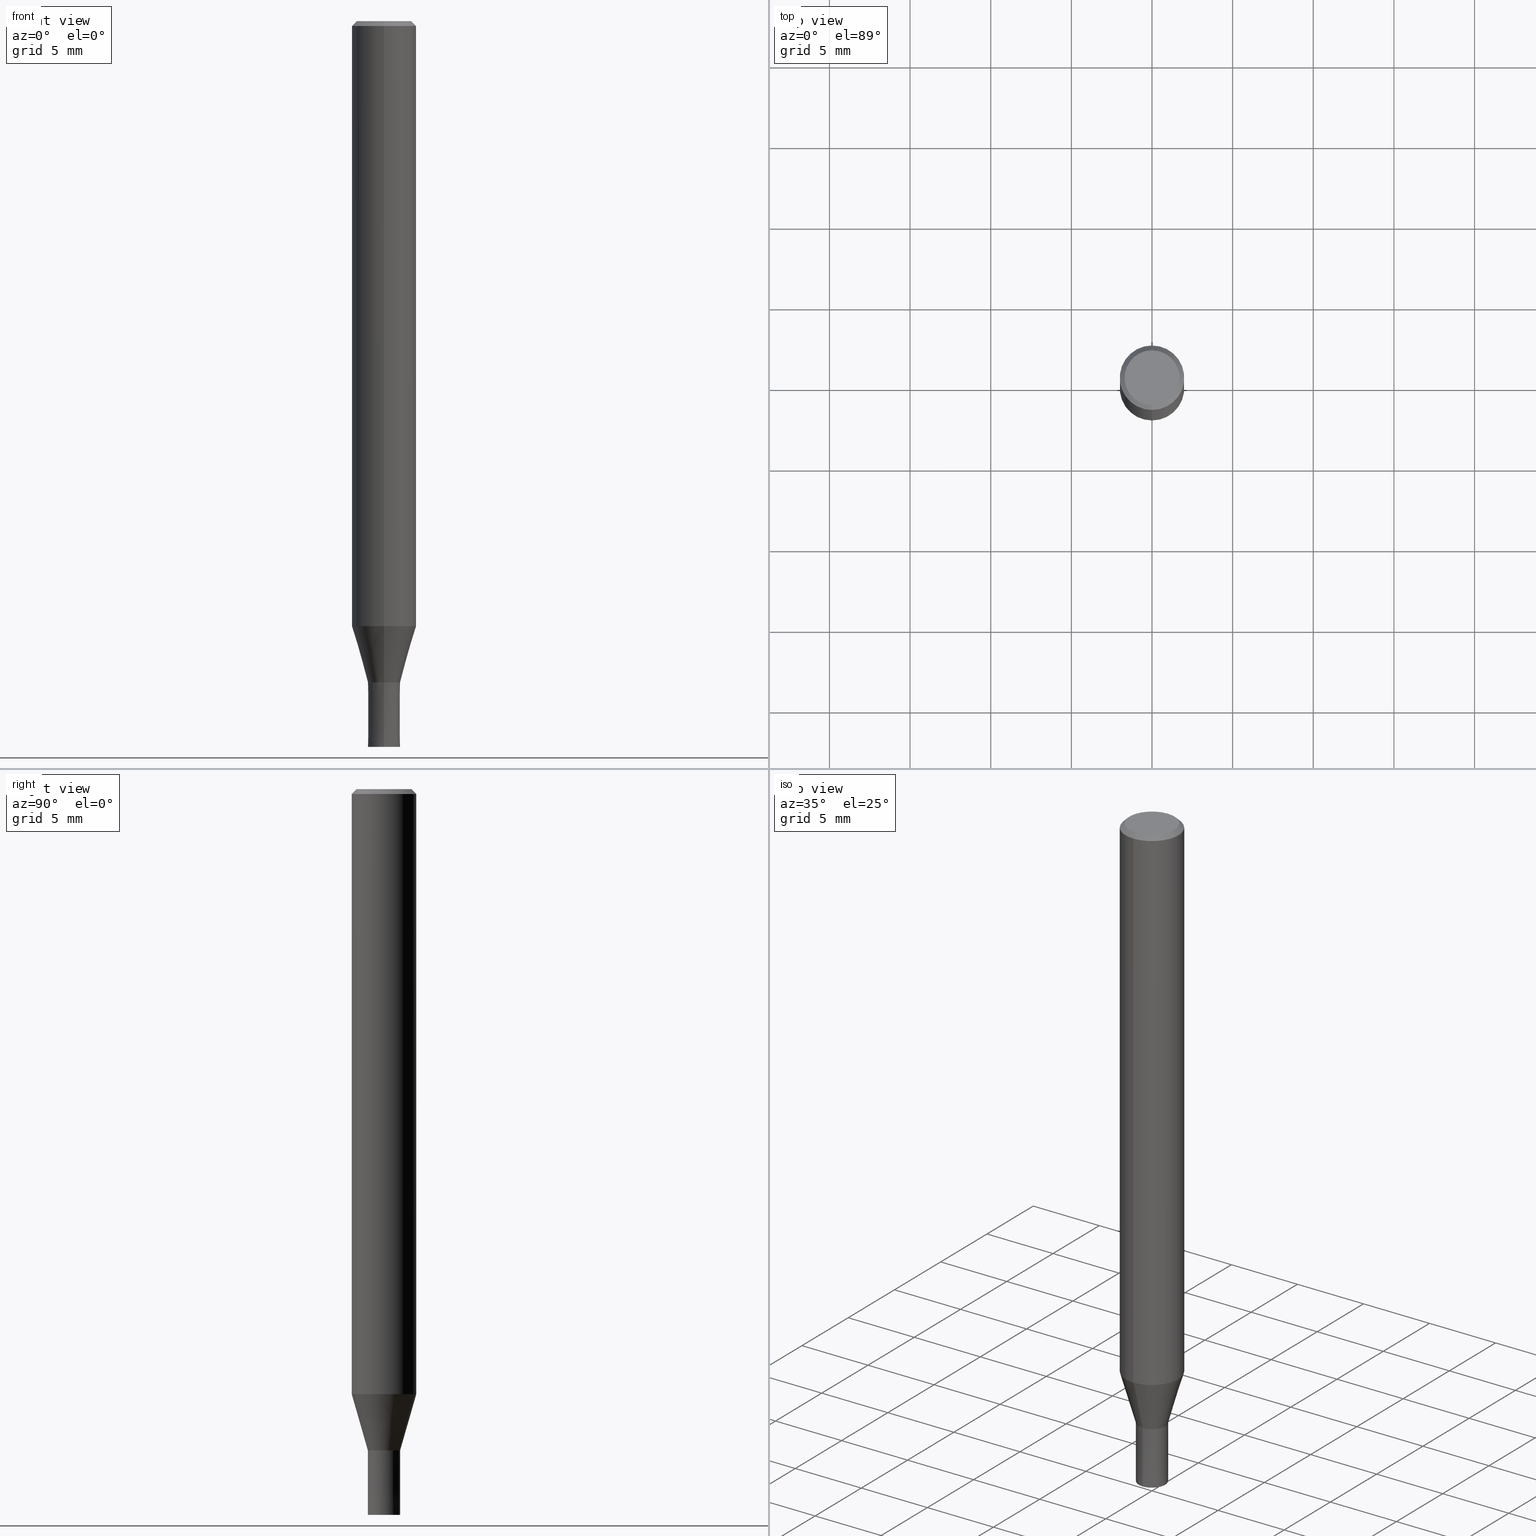
[diagram: canonical four-view strip — front | top / right | iso, engineering-drawing reading convention]
A machine part, canonical four-view strip (front | top / right | iso — engineering-drawing reading convention). The complete STEP part file that produces these views, byte-faithful:
ISO-10303-21;
HEADER;
FILE_DESCRIPTION(('no description'),'unknown implementation level');
FILE_NAME('HMS3020-0400-Huellk.stp','  ',('CIMSOURCE GmbH'),('CADClick - KiM GmbH - www.kimweb.de'),'unknown preprocess','ACIS','unknown authorization');
FILE_SCHEMA(('automotive_design'));
ENDSEC;
DATA;
#1=MECHANICAL_DESIGN_GEOMETRIC_PRESENTATION_REPRESENTATION(' ',(#14,#15,#16,#17,#18,#19,#20,#21,#22,#23,#24,#25,#26,#27,#28,#29,#30,#31,#32,#33,#34,#35,#36,#37,#38,#39,#40,#41,#42,#43,#44,#45,#46,#47,#48,#49,#50,#51,#52,#53,#54,#55,#56,#57,#58,#59,#60,#61,#62,#63,#64,#65,#66,#67,#68,#69,#70,#71,#72,#73,#74,#75,#76,#77,#78,#79,#80,#81,#82,#83,#84,#85,#86,#87,#88,#89),#10);
#2=PRODUCT_DEFINITION_CONTEXT('',#90,'design');
#3=APPLICATION_PROTOCOL_DEFINITION('INTERNATIONAL STANDARD','automotive_design',1994,#90);
#4=PRODUCT_CATEGORY_RELATIONSHIP('NONE','NONE',#91,#92);
#5=SHAPE_DEFINITION_REPRESENTATION(#93,#94);
#6=PRODUCT_DEFINITION_CONTEXT('',#95,'design');
#7=APPLICATION_PROTOCOL_DEFINITION('INTERNATIONAL STANDARD','automotive_design',1994,#95);
#8=PRODUCT_CATEGORY_RELATIONSHIP('NONE','NONE',#96,#97);
#9=SHAPE_DEFINITION_REPRESENTATION(#98,#99);
#10= (GEOMETRIC_REPRESENTATION_CONTEXT(3)GLOBAL_UNCERTAINTY_ASSIGNED_CONTEXT((#102))GLOBAL_UNIT_ASSIGNED_CONTEXT((#104,#105,#106))REPRESENTATION_CONTEXT('NONE','WORKSPACE'));
#14=STYLED_ITEM('',(#108),#109);
#15=STYLED_ITEM('',(#110),#111);
#16=STYLED_ITEM('',(#112),#113);
#17=STYLED_ITEM('',(#114),#115);
#18=STYLED_ITEM('',(#116),#117);
#19=STYLED_ITEM('',(#118),#119);
#20=STYLED_ITEM('',(#120),#121);
#21=STYLED_ITEM('',(#122),#123);
#22=STYLED_ITEM('',(#124),#125);
#23=STYLED_ITEM('',(#126),#127);
#24=STYLED_ITEM('',(#128),#129);
#25=STYLED_ITEM('',(#130),#131);
#26=STYLED_ITEM('',(#132),#133);
#27=STYLED_ITEM('',(#134),#135);
#28=STYLED_ITEM('',(#136),#137);
#29=STYLED_ITEM('',(#138),#139);
#30=STYLED_ITEM('',(#140),#141);
#31=STYLED_ITEM('',(#142),#143);
#32=STYLED_ITEM('',(#144),#145);
#33=STYLED_ITEM('',(#146),#147);
#34=STYLED_ITEM('',(#148),#149);
#35=STYLED_ITEM('',(#150),#151);
#36=STYLED_ITEM('',(#152),#153);
#37=STYLED_ITEM('',(#154),#155);
#38=STYLED_ITEM('',(#156),#157);
#39=STYLED_ITEM('',(#158),#159);
#40=STYLED_ITEM('',(#160),#161);
#41=STYLED_ITEM('',(#162),#163);
#42=STYLED_ITEM('',(#164),#165);
#43=STYLED_ITEM('',(#166),#167);
#44=STYLED_ITEM('',(#168),#169);
#45=STYLED_ITEM('',(#170),#171);
#46=STYLED_ITEM('',(#172),#173);
#47=STYLED_ITEM('',(#174),#175);
#48=STYLED_ITEM('',(#176),#177);
#49=STYLED_ITEM('',(#178),#179);
#50=STYLED_ITEM('',(#180),#181);
#51=STYLED_ITEM('',(#182),#183);
#52=STYLED_ITEM('',(#184),#185);
#53=STYLED_ITEM('',(#186),#187);
#54=STYLED_ITEM('',(#188),#189);
#55=STYLED_ITEM('',(#190),#191);
#56=STYLED_ITEM('',(#192),#193);
#57=STYLED_ITEM('',(#194),#195);
#58=STYLED_ITEM('',(#196),#197);
#59=STYLED_ITEM('',(#198),#199);
#60=STYLED_ITEM('',(#200),#201);
#61=STYLED_ITEM('',(#202),#203);
#62=STYLED_ITEM('',(#204),#205);
#63=STYLED_ITEM('',(#206),#207);
#64=STYLED_ITEM('',(#208),#209);
#65=STYLED_ITEM('',(#210),#211);
#66=STYLED_ITEM('',(#212),#213);
#67=STYLED_ITEM('',(#214),#215);
#68=STYLED_ITEM('',(#216),#217);
#69=STYLED_ITEM('',(#218),#219);
#70=STYLED_ITEM('',(#220),#221);
#71=STYLED_ITEM('',(#222),#223);
#72=STYLED_ITEM('',(#224),#225);
#73=STYLED_ITEM('',(#226),#227);
#74=STYLED_ITEM('',(#228),#229);
#75=STYLED_ITEM('',(#230),#231);
#76=STYLED_ITEM('',(#232),#233);
#77=STYLED_ITEM('',(#234),#235);
#78=STYLED_ITEM('',(#236),#237);
#79=STYLED_ITEM('',(#238),#239);
#80=STYLED_ITEM('',(#240),#241);
#81=STYLED_ITEM('',(#242),#243);
#82=STYLED_ITEM('',(#244),#245);
#83=STYLED_ITEM('',(#246),#247);
#84=STYLED_ITEM('',(#248),#249);
#85=STYLED_ITEM('',(#250),#251);
#86=STYLED_ITEM('',(#252),#253);
#87=STYLED_ITEM('',(#254),#255);
#88=STYLED_ITEM('',(#256),#257);
#89=STYLED_ITEM('',(#258),#259);
#90=APPLICATION_CONTEXT(' ');
#91=PRODUCT_CATEGORY('part','NONE');
#92=PRODUCT_RELATED_PRODUCT_CATEGORY('detail',' ',(#260));
#93=PRODUCT_DEFINITION_SHAPE('NONE','NONE',#261);
#94=ADVANCED_BREP_SHAPE_REPRESENTATION('1',(#209,#262),#10);
#95=APPLICATION_CONTEXT(' ');
#96=PRODUCT_CATEGORY('part','NONE');
#97=PRODUCT_RELATED_PRODUCT_CATEGORY('detail',' ',(#263));
#98=PRODUCT_DEFINITION_SHAPE('NONE','NONE',#264);
#99=ADVANCED_BREP_SHAPE_REPRESENTATION('2',(#237,#265),#10);
#102=UNCERTAINTY_MEASURE_WITH_UNIT(LENGTH_MEASURE(1.0E-006),#104,'','');
#104= (CONVERSION_BASED_UNIT('MILLIMETRE',#268)LENGTH_UNIT()NAMED_UNIT(#271));
#105= (NAMED_UNIT(#273)PLANE_ANGLE_UNIT()SI_UNIT($,.RADIAN.));
#106= (NAMED_UNIT(#273)SOLID_ANGLE_UNIT()SI_UNIT($,.STERADIAN.));
#108=PRESENTATION_STYLE_ASSIGNMENT((#279));
#109=EDGE_CURVE('',#213,#193,#280,.T.);
#110=PRESENTATION_STYLE_ASSIGNMENT((#281));
#111=VERTEX_POINT('',#282);
#112=PRESENTATION_STYLE_ASSIGNMENT((#283));
#113=VERTEX_POINT('',#284);
#114=PRESENTATION_STYLE_ASSIGNMENT((#285));
#115=EDGE_CURVE('',#135,#111,#286,.T.);
#116=PRESENTATION_STYLE_ASSIGNMENT((#287));
#117=EDGE_CURVE('',#213,#257,#288,.T.);
#118=PRESENTATION_STYLE_ASSIGNMENT((#289));
#119=EDGE_CURVE('',#165,#175,#290,.T.);
#120=PRESENTATION_STYLE_ASSIGNMENT((#291));
#121=EDGE_CURVE('',#175,#165,#292,.T.);
#122=PRESENTATION_STYLE_ASSIGNMENT((#293));
#123=ADVANCED_FACE('',(#294),#295,.T.);
#124=PRESENTATION_STYLE_ASSIGNMENT((#296));
#125=VERTEX_POINT('',#297);
#126=PRESENTATION_STYLE_ASSIGNMENT((#298));
#127=VERTEX_POINT('',#299);
#128=PRESENTATION_STYLE_ASSIGNMENT((#300));
#129=EDGE_CURVE('',#161,#127,#301,.T.);
#130=PRESENTATION_STYLE_ASSIGNMENT((#302));
#131=EDGE_CURVE('',#157,#159,#303,.T.);
#132=PRESENTATION_STYLE_ASSIGNMENT((#304));
#133=ADVANCED_FACE('',(#305),#306,.T.);
#134=PRESENTATION_STYLE_ASSIGNMENT((#307));
#135=VERTEX_POINT('',#308);
#136=PRESENTATION_STYLE_ASSIGNMENT((#309));
#137=EDGE_CURVE('',#165,#159,#310,.T.);
#138=PRESENTATION_STYLE_ASSIGNMENT((#311));
#139=ADVANCED_FACE('',(#312),#313,.T.);
#140=PRESENTATION_STYLE_ASSIGNMENT((#314));
#141=EDGE_CURVE('',#183,#113,#315,.T.);
#142=PRESENTATION_STYLE_ASSIGNMENT((#316));
#143=EDGE_CURVE('',#163,#161,#317,.T.);
#144=PRESENTATION_STYLE_ASSIGNMENT((#318));
#145=ADVANCED_FACE('',(#319),#320,.T.);
#146=PRESENTATION_STYLE_ASSIGNMENT((#321));
#147=EDGE_CURVE('',#135,#249,#322,.T.);
#148=PRESENTATION_STYLE_ASSIGNMENT((#323));
#149=ADVANCED_FACE('',(#324),#325,.T.);
#150=PRESENTATION_STYLE_ASSIGNMENT((#326));
#151=ADVANCED_FACE('',(#327),#328,.T.);
#152=PRESENTATION_STYLE_ASSIGNMENT((#329));
#153=ADVANCED_FACE('',(#330),#331,.T.);
#154=PRESENTATION_STYLE_ASSIGNMENT((#332));
#155=EDGE_CURVE('',#127,#161,#333,.T.);
#156=PRESENTATION_STYLE_ASSIGNMENT((#334));
#157=VERTEX_POINT('',#335);
#158=PRESENTATION_STYLE_ASSIGNMENT((#336));
#159=VERTEX_POINT('',#337);
#160=PRESENTATION_STYLE_ASSIGNMENT((#338));
#161=VERTEX_POINT('',#339);
#162=PRESENTATION_STYLE_ASSIGNMENT((#340));
#163=VERTEX_POINT('',#341);
#164=PRESENTATION_STYLE_ASSIGNMENT((#342));
#165=VERTEX_POINT('',#343);
#166=PRESENTATION_STYLE_ASSIGNMENT((#344));
#167=ADVANCED_FACE('',(#345),#346,.T.);
#168=PRESENTATION_STYLE_ASSIGNMENT((#347));
#169=VERTEX_POINT('',#348);
#170=PRESENTATION_STYLE_ASSIGNMENT((#349));
#171=EDGE_CURVE('',#189,#249,#350,.T.);
#172=PRESENTATION_STYLE_ASSIGNMENT((#351));
#173=EDGE_CURVE('',#211,#193,#352,.T.);
#174=PRESENTATION_STYLE_ASSIGNMENT((#353));
#175=VERTEX_POINT('',#354);
#176=PRESENTATION_STYLE_ASSIGNMENT((#355));
#177=EDGE_CURVE('',#113,#183,#356,.T.);
#178=PRESENTATION_STYLE_ASSIGNMENT((#357));
#179=ADVANCED_FACE('',(#358),#359,.T.);
#180=PRESENTATION_STYLE_ASSIGNMENT((#360));
#181=EDGE_CURVE('',#221,#157,#361,.T.);
#182=PRESENTATION_STYLE_ASSIGNMENT((#362));
#183=VERTEX_POINT('',#363);
#184=PRESENTATION_STYLE_ASSIGNMENT((#364));
#185=EDGE_CURVE('',#221,#247,#365,.T.);
#186=PRESENTATION_STYLE_ASSIGNMENT((#366));
#187=ADVANCED_FACE('',(#367,#368),#369,.T.);
#188=PRESENTATION_STYLE_ASSIGNMENT((#370));
#189=VERTEX_POINT('',#371);
#190=PRESENTATION_STYLE_ASSIGNMENT((#372));
#191=ADVANCED_FACE('',(#373,#374),#375,.T.);
#192=PRESENTATION_STYLE_ASSIGNMENT((#376));
#193=VERTEX_POINT('',#377);
#194=PRESENTATION_STYLE_ASSIGNMENT((#378));
#195=EDGE_CURVE('',#247,#221,#379,.T.);
#196=PRESENTATION_STYLE_ASSIGNMENT((#380));
#197=EDGE_CURVE('',#159,#247,#381,.T.);
#198=PRESENTATION_STYLE_ASSIGNMENT((#382));
#199=EDGE_CURVE('',#127,#259,#383,.T.);
#200=PRESENTATION_STYLE_ASSIGNMENT((#384));
#201=ADVANCED_FACE('',(#385),#386,.F.);
#202=PRESENTATION_STYLE_ASSIGNMENT((#387));
#203=EDGE_CURVE('',#189,#111,#388,.T.);
#204=PRESENTATION_STYLE_ASSIGNMENT((#389));
#205=EDGE_CURVE('',#183,#169,#390,.T.);
#206=PRESENTATION_STYLE_ASSIGNMENT((#391));
#207=EDGE_CURVE('',#157,#175,#392,.T.);
#208=PRESENTATION_STYLE_ASSIGNMENT((#393));
#209=MANIFOLD_SOLID_BREP('1',#394);
#210=PRESENTATION_STYLE_ASSIGNMENT((#395));
#211=VERTEX_POINT('',#396);
#212=PRESENTATION_STYLE_ASSIGNMENT((#397));
#213=VERTEX_POINT('',#398);
#214=PRESENTATION_STYLE_ASSIGNMENT((#399));
#215=ADVANCED_FACE('',(#400),#401,.F.);
#216=PRESENTATION_STYLE_ASSIGNMENT((#402));
#217=EDGE_CURVE('',#249,#135,#403,.T.);
#218=PRESENTATION_STYLE_ASSIGNMENT((#404));
#219=EDGE_CURVE('',#163,#259,#405,.T.);
#220=PRESENTATION_STYLE_ASSIGNMENT((#406));
#221=VERTEX_POINT('',#407);
#222=PRESENTATION_STYLE_ASSIGNMENT((#408));
#223=EDGE_CURVE('',#193,#211,#409,.T.);
#224=PRESENTATION_STYLE_ASSIGNMENT((#410));
#225=EDGE_CURVE('',#125,#113,#411,.T.);
#226=PRESENTATION_STYLE_ASSIGNMENT((#412));
#227=EDGE_CURVE('',#257,#213,#413,.T.);
#228=PRESENTATION_STYLE_ASSIGNMENT((#414));
#229=ADVANCED_FACE('',(#415),#416,.T.);
#230=PRESENTATION_STYLE_ASSIGNMENT((#417));
#231=ADVANCED_FACE('',(#418,#419),#420,.T.);
#232=PRESENTATION_STYLE_ASSIGNMENT((#421));
#233=EDGE_CURVE('',#159,#157,#422,.T.);
#234=PRESENTATION_STYLE_ASSIGNMENT((#423));
#235=EDGE_CURVE('',#111,#189,#424,.T.);
#236=PRESENTATION_STYLE_ASSIGNMENT((#425));
#237=MANIFOLD_SOLID_BREP('2',#426);
#238=PRESENTATION_STYLE_ASSIGNMENT((#427));
#239=EDGE_CURVE('',#125,#169,#428,.T.);
#240=PRESENTATION_STYLE_ASSIGNMENT((#429));
#241=ADVANCED_FACE('',(#430),#431,.T.);
#242=PRESENTATION_STYLE_ASSIGNMENT((#432));
#243=EDGE_CURVE('',#259,#163,#433,.T.);
#244=PRESENTATION_STYLE_ASSIGNMENT((#434));
#245=ADVANCED_FACE('',(#435,#436),#437,.T.);
#246=PRESENTATION_STYLE_ASSIGNMENT((#438));
#247=VERTEX_POINT('',#439);
#248=PRESENTATION_STYLE_ASSIGNMENT((#440));
#249=VERTEX_POINT('',#441);
#250=PRESENTATION_STYLE_ASSIGNMENT((#442));
#251=EDGE_CURVE('',#169,#125,#443,.T.);
#252=PRESENTATION_STYLE_ASSIGNMENT((#444));
#253=EDGE_CURVE('',#211,#257,#445,.T.);
#254=PRESENTATION_STYLE_ASSIGNMENT((#446));
#255=ADVANCED_FACE('',(#447),#448,.T.);
#256=PRESENTATION_STYLE_ASSIGNMENT((#449));
#257=VERTEX_POINT('',#450);
#258=PRESENTATION_STYLE_ASSIGNMENT((#451));
#259=VERTEX_POINT('',#452);
#260=PRODUCT('1','1','PART-1-DESC',(#453));
#261=PRODUCT_DEFINITION('NONE','NONE',#454,#2);
#262=AXIS2_PLACEMENT_3D('',#455,#456,#457);
#263=PRODUCT('2','2','PART-2-DESC',(#458));
#264=PRODUCT_DEFINITION('NONE','NONE',#459,#6);
#265=AXIS2_PLACEMENT_3D('',#460,#461,#462);
#268=LENGTH_MEASURE_WITH_UNIT(LENGTH_MEASURE(1.0),#463);
#271=DIMENSIONAL_EXPONENTS(1.0,0.0,0.0,0.0,0.0,0.0,0.0);
#273=DIMENSIONAL_EXPONENTS(0.0,0.0,0.0,0.0,0.0,0.0,0.0);
#279=CURVE_STYLE('',#464,POSITIVE_LENGTH_MEASURE(1.0E-006),#465);
#280=LINE('',#466,#467);
#281=POINT_STYLE(' ',#468,POSITIVE_LENGTH_MEASURE(1.0E-006),#469);
#282=CARTESIAN_POINT('',(1.224483893187E-016,-0.9999,-41.0));
#283=POINT_STYLE(' ',#470,POSITIVE_LENGTH_MEASURE(1.0E-006),#471);
#284=CARTESIAN_POINT('',(0.0,0.45,-44.9));
#285=CURVE_STYLE('',#472,POSITIVE_LENGTH_MEASURE(1.0E-006),#473);
#286=LINE('',#474,#475);
#287=CURVE_STYLE('',#476,POSITIVE_LENGTH_MEASURE(1.0E-006),#477);
#288=CIRCLE('',#478,0.45);
#289=CURVE_STYLE('',#479,POSITIVE_LENGTH_MEASURE(1.0E-006),#480);
#290=CIRCLE('',#481,2.0);
#291=CURVE_STYLE('',#482,POSITIVE_LENGTH_MEASURE(1.0E-006),#483);
#292=CIRCLE('',#484,2.0);
#293=SURFACE_STYLE_USAGE(.BOTH.,#485);
#294=FACE_OUTER_BOUND('',#486,.T.);
#295=CONICAL_SURFACE('',#487,1.49995,0.279284171542493);
#296=POINT_STYLE(' ',#488,POSITIVE_LENGTH_MEASURE(1.0E-006),#489);
#297=CARTESIAN_POINT('',(0.0,0.45,-41.0));
#298=POINT_STYLE(' ',#490,POSITIVE_LENGTH_MEASURE(1.0E-006),#491);
#299=CARTESIAN_POINT('',(0.0,1.99995,-37.513));
#300=CURVE_STYLE('',#492,POSITIVE_LENGTH_MEASURE(1.0E-006),#493);
#301=CIRCLE('',#494,1.99995);
#302=CURVE_STYLE('',#495,POSITIVE_LENGTH_MEASURE(1.0E-006),#496);
#303=CIRCLE('',#497,2.0);
#304=SURFACE_STYLE_USAGE(.BOTH.,#498);
#305=FACE_OUTER_BOUND('',#499,.T.);
#306=CONICAL_SURFACE('',#500,0.99995,2.49999999947889E-005);
#307=POINT_STYLE(' ',#501,POSITIVE_LENGTH_MEASURE(1.0E-006),#502);
#308=CARTESIAN_POINT('',(1.22460635382238E-016,-1.0,-45.0));
#309=CURVE_STYLE('',#503,POSITIVE_LENGTH_MEASURE(1.0E-006),#504);
#310=LINE('',#505,#506);
#311=SURFACE_STYLE_USAGE(.BOTH.,#507);
#312=FACE_OUTER_BOUND('',#508,.T.);
#313=PLANE('',#509);
#314=CURVE_STYLE('',#510,POSITIVE_LENGTH_MEASURE(1.0E-006),#511);
#315=CIRCLE('',#512,0.45);
#316=CURVE_STYLE('',#513,POSITIVE_LENGTH_MEASURE(1.0E-006),#514);
#317=LINE('',#515,#516);
#318=SURFACE_STYLE_USAGE(.BOTH.,#517);
#319=FACE_OUTER_BOUND('',#518,.T.);
#320=CONICAL_SURFACE('',#519,1.85,0.785398163397453);
#321=CURVE_STYLE('',#520,POSITIVE_LENGTH_MEASURE(1.0E-006),#521);
#322=CIRCLE('',#522,1.0);
#323=SURFACE_STYLE_USAGE(.BOTH.,#523);
#324=FACE_OUTER_BOUND('',#524,.T.);
#325=CONICAL_SURFACE('',#525,0.99995,2.49999999947889E-005);
#326=SURFACE_STYLE_USAGE(.BOTH.,#526);
#327=FACE_OUTER_BOUND('',#527,.T.);
#328=CYLINDRICAL_SURFACE('',#528,0.45);
#329=SURFACE_STYLE_USAGE(.BOTH.,#529);
#330=FACE_OUTER_BOUND('',#530,.T.);
#331=PLANE('',#531);
#332=CURVE_STYLE('',#532,POSITIVE_LENGTH_MEASURE(1.0E-006),#533);
#333=CIRCLE('',#534,1.99995);
#334=POINT_STYLE(' ',#535,POSITIVE_LENGTH_MEASURE(1.0E-006),#536);
#335=CARTESIAN_POINT('',(0.0,2.0,-0.299999999999997));
#336=POINT_STYLE(' ',#537,POSITIVE_LENGTH_MEASURE(1.0E-006),#538);
#337=CARTESIAN_POINT('',(2.44921270764475E-016,-2.0,-0.299999999999997));
#338=POINT_STYLE(' ',#539,POSITIVE_LENGTH_MEASURE(1.0E-006),#540);
#339=CARTESIAN_POINT('',(2.44915147732706E-016,-1.99995,-37.513));
#340=POINT_STYLE(' ',#541,POSITIVE_LENGTH_MEASURE(1.0E-006),#542);
#341=CARTESIAN_POINT('',(1.22454512350469E-016,-0.99995,-41.0));
#342=POINT_STYLE(' ',#543,POSITIVE_LENGTH_MEASURE(1.0E-006),#544);
#343=CARTESIAN_POINT('',(2.44921270764475E-016,-2.0,-37.513));
#344=SURFACE_STYLE_USAGE(.BOTH.,#545);
#345=FACE_OUTER_BOUND('',#546,.T.);
#346=CYLINDRICAL_SURFACE('',#547,0.45);
#347=POINT_STYLE(' ',#548,POSITIVE_LENGTH_MEASURE(1.0E-006),#549);
#348=CARTESIAN_POINT('',(5.5107285922007E-017,-0.45,-41.0));
#349=CURVE_STYLE('',#550,POSITIVE_LENGTH_MEASURE(1.0E-006),#551);
#350=LINE('',#552,#553);
#351=CURVE_STYLE('',#554,POSITIVE_LENGTH_MEASURE(1.0E-006),#555);
#352=CIRCLE('',#556,0.45);
#353=POINT_STYLE(' ',#557,POSITIVE_LENGTH_MEASURE(1.0E-006),#558);
#354=CARTESIAN_POINT('',(0.0,2.0,-37.513));
#355=CURVE_STYLE('',#559,POSITIVE_LENGTH_MEASURE(1.0E-006),#560);
#356=CIRCLE('',#561,0.45);
#357=SURFACE_STYLE_USAGE(.BOTH.,#562);
#358=FACE_OUTER_BOUND('',#563,.T.);
#359=CONICAL_SURFACE('',#564,1.49995,0.279284171542493);
#360=CURVE_STYLE('',#565,POSITIVE_LENGTH_MEASURE(1.0E-006),#566);
#361=LINE('',#567,#568);
#362=POINT_STYLE(' ',#569,POSITIVE_LENGTH_MEASURE(1.0E-006),#570);
#363=CARTESIAN_POINT('',(5.5107285922007E-017,-0.45,-44.9));
#364=CURVE_STYLE('',#571,POSITIVE_LENGTH_MEASURE(1.0E-006),#572);
#365=CIRCLE('',#573,1.7);
#366=SURFACE_STYLE_USAGE(.BOTH.,#574);
#367=FACE_OUTER_BOUND('',#575,.T.);
#368=FACE_BOUND('',#576,.T.);
#369=PLANE('',#577);
#370=POINT_STYLE(' ',#578,POSITIVE_LENGTH_MEASURE(1.0E-006),#579);
#371=CARTESIAN_POINT('',(0.0,0.9999,-41.0));
#372=SURFACE_STYLE_USAGE(.BOTH.,#580);
#373=FACE_OUTER_BOUND('',#581,.T.);
#374=FACE_BOUND('',#582,.T.);
#375=PLANE('',#583);
#376=POINT_STYLE(' ',#584,POSITIVE_LENGTH_MEASURE(1.0E-006),#585);
#377=CARTESIAN_POINT('',(0.0,0.45,-45.0));
#378=CURVE_STYLE('',#586,POSITIVE_LENGTH_MEASURE(1.0E-006),#587);
#379=CIRCLE('',#588,1.7);
#380=CURVE_STYLE('',#589,POSITIVE_LENGTH_MEASURE(1.0E-006),#590);
#381=LINE('',#591,#592);
#382=CURVE_STYLE('',#593,POSITIVE_LENGTH_MEASURE(1.0E-006),#594);
#383=LINE('',#595,#596);
#384=SURFACE_STYLE_USAGE(.BOTH.,#597);
#385=FACE_OUTER_BOUND('',#598,.T.);
#386=CYLINDRICAL_SURFACE('',#599,0.45);
#387=CURVE_STYLE('',#600,POSITIVE_LENGTH_MEASURE(1.0E-006),#601);
#388=CIRCLE('',#602,0.9999);
#389=CURVE_STYLE('',#603,POSITIVE_LENGTH_MEASURE(1.0E-006),#604);
#390=LINE('',#605,#606);
#391=CURVE_STYLE('',#607,POSITIVE_LENGTH_MEASURE(1.0E-006),#608);
#392=LINE('',#609,#610);
#393=SURFACE_STYLE_USAGE(.BOTH.,#611);
#394=CLOSED_SHELL('',(#167,#179,#241,#229,#191,#139,#145,#255,#123,#231,#151,#153));
#395=POINT_STYLE(' ',#612,POSITIVE_LENGTH_MEASURE(1.0E-006),#613);
#396=CARTESIAN_POINT('',(5.5107285922007E-017,-0.45,-45.0));
#397=POINT_STYLE(' ',#614,POSITIVE_LENGTH_MEASURE(1.0E-006),#615);
#398=CARTESIAN_POINT('',(0.0,0.45,-41.0));
#399=SURFACE_STYLE_USAGE(.BOTH.,#616);
#400=FACE_OUTER_BOUND('',#617,.T.);
#401=CYLINDRICAL_SURFACE('',#618,0.45);
#402=CURVE_STYLE('',#619,POSITIVE_LENGTH_MEASURE(1.0E-006),#620);
#403=CIRCLE('',#621,1.0);
#404=CURVE_STYLE('',#622,POSITIVE_LENGTH_MEASURE(1.0E-006),#623);
#405=CIRCLE('',#624,0.99995);
#406=POINT_STYLE(' ',#625,POSITIVE_LENGTH_MEASURE(1.0E-006),#626);
#407=CARTESIAN_POINT('',(0.0,1.7,0.0));
#408=CURVE_STYLE('',#627,POSITIVE_LENGTH_MEASURE(1.0E-006),#628);
#409=CIRCLE('',#629,0.45);
#410=CURVE_STYLE('',#630,POSITIVE_LENGTH_MEASURE(1.0E-006),#631);
#411=LINE('',#632,#633);
#412=CURVE_STYLE('',#634,POSITIVE_LENGTH_MEASURE(1.0E-006),#635);
#413=CIRCLE('',#636,0.45);
#414=SURFACE_STYLE_USAGE(.BOTH.,#637);
#415=FACE_OUTER_BOUND('',#638,.T.);
#416=CONICAL_SURFACE('',#639,1.85,0.785398163397453);
#417=SURFACE_STYLE_USAGE(.BOTH.,#640);
#418=FACE_BOUND('',#641,.T.);
#419=FACE_OUTER_BOUND('',#642,.T.);
#420=PLANE('',#643);
#421=CURVE_STYLE('',#644,POSITIVE_LENGTH_MEASURE(1.0E-006),#645);
#422=CIRCLE('',#646,2.0);
#423=CURVE_STYLE('',#647,POSITIVE_LENGTH_MEASURE(1.0E-006),#648);
#424=CIRCLE('',#649,0.9999);
#425=SURFACE_STYLE_USAGE(.BOTH.,#650);
#426=CLOSED_SHELL('',(#215,#133,#245,#149,#187,#201));
#427=CURVE_STYLE('',#651,POSITIVE_LENGTH_MEASURE(1.0E-006),#652);
#428=CIRCLE('',#653,0.45);
#429=SURFACE_STYLE_USAGE(.BOTH.,#654);
#430=FACE_OUTER_BOUND('',#655,.T.);
#431=CYLINDRICAL_SURFACE('',#656,2.0);
#432=CURVE_STYLE('',#657,POSITIVE_LENGTH_MEASURE(1.0E-006),#658);
#433=CIRCLE('',#659,0.99995);
#434=SURFACE_STYLE_USAGE(.BOTH.,#660);
#435=FACE_OUTER_BOUND('',#661,.T.);
#436=FACE_BOUND('',#662,.T.);
#437=PLANE('',#663);
#438=POINT_STYLE(' ',#664,POSITIVE_LENGTH_MEASURE(1.0E-006),#665);
#439=CARTESIAN_POINT('',(2.08183080149804E-016,-1.7,0.0));
#440=POINT_STYLE(' ',#666,POSITIVE_LENGTH_MEASURE(1.0E-006),#667);
#441=CARTESIAN_POINT('',(0.0,1.0,-45.0));
#442=CURVE_STYLE('',#668,POSITIVE_LENGTH_MEASURE(1.0E-006),#669);
#443=CIRCLE('',#670,0.45);
#444=CURVE_STYLE('',#671,POSITIVE_LENGTH_MEASURE(1.0E-006),#672);
#445=LINE('',#673,#674);
#446=SURFACE_STYLE_USAGE(.BOTH.,#675);
#447=FACE_OUTER_BOUND('',#676,.T.);
#448=CYLINDRICAL_SURFACE('',#677,2.0);
#449=POINT_STYLE(' ',#678,POSITIVE_LENGTH_MEASURE(1.0E-006),#679);
#450=CARTESIAN_POINT('',(5.5107285922007E-017,-0.45,-41.0));
#451=POINT_STYLE(' ',#680,POSITIVE_LENGTH_MEASURE(1.0E-006),#681);
#452=CARTESIAN_POINT('',(0.0,0.99995,-41.0));
#453=PRODUCT_CONTEXT('',#90,'mechanical');
#454=PRODUCT_DEFINITION_FORMATION_WITH_SPECIFIED_SOURCE(' ','NONE',#260,.NOT_KNOWN.);
#455=CARTESIAN_POINT('',(0.0,0.0,0.0));
#456=DIRECTION('',(0.0,0.0,1.0));
#457=DIRECTION('',(1.0,0.0,0.0));
#458=PRODUCT_CONTEXT('',#95,'mechanical');
#459=PRODUCT_DEFINITION_FORMATION_WITH_SPECIFIED_SOURCE(' ','NONE',#263,.NOT_KNOWN.);
#460=CARTESIAN_POINT('',(0.0,0.0,0.0));
#461=DIRECTION('',(0.0,0.0,1.0));
#462=DIRECTION('',(1.0,0.0,0.0));
#463= (NAMED_UNIT(#271)LENGTH_UNIT()SI_UNIT(.MILLI.,.METRE.));
#464=DRAUGHTING_PRE_DEFINED_CURVE_FONT('continuous');
#465=COLOUR_RGB('',0.800000011920929,0.800000011920929,0.800000011920929);
#466=CARTESIAN_POINT('',(-5.5107285922007E-017,0.45,-43.0));
#467=VECTOR('',#683,1.0);
#468=PRE_DEFINED_MARKER('');
#469=COLOUR_RGB('',0.800000011920929,0.800000011920929,0.800000011920929);
#470=PRE_DEFINED_MARKER('');
#471=COLOUR_RGB('',0.498039215803146,0.498039215803146,0.498039215803146);
#472=DRAUGHTING_PRE_DEFINED_CURVE_FONT('continuous');
#473=COLOUR_RGB('',0.800000011920929,0.800000011920929,0.800000011920929);
#474=CARTESIAN_POINT('',(1.22454512350469E-016,-0.99995,-43.0));
#475=VECTOR('',#684,1.0);
#476=DRAUGHTING_PRE_DEFINED_CURVE_FONT('continuous');
#477=COLOUR_RGB('',0.800000011920929,0.800000011920929,0.800000011920929);
#478=AXIS2_PLACEMENT_3D('',#685,#686,#687);
#479=DRAUGHTING_PRE_DEFINED_CURVE_FONT('continuous');
#480=COLOUR_RGB('',0.498039215803146,0.498039215803146,0.498039215803146);
#481=AXIS2_PLACEMENT_3D('',#688,#689,#690);
#482=DRAUGHTING_PRE_DEFINED_CURVE_FONT('continuous');
#483=COLOUR_RGB('',0.498039215803146,0.498039215803146,0.498039215803146);
#484=AXIS2_PLACEMENT_3D('',#691,#692,#693);
#485=SURFACE_SIDE_STYLE('',(#694));
#486=EDGE_LOOP('',(#695,#696,#697,#698));
#487=AXIS2_PLACEMENT_3D('',#699,#700,#701);
#488=PRE_DEFINED_MARKER('');
#489=COLOUR_RGB('',0.498039215803146,0.498039215803146,0.498039215803146);
#490=PRE_DEFINED_MARKER('');
#491=COLOUR_RGB('',0.498039215803146,0.498039215803146,0.498039215803146);
#492=DRAUGHTING_PRE_DEFINED_CURVE_FONT('continuous');
#493=COLOUR_RGB('',0.498039215803146,0.498039215803146,0.498039215803146);
#494=AXIS2_PLACEMENT_3D('',#702,#703,#704);
#495=DRAUGHTING_PRE_DEFINED_CURVE_FONT('continuous');
#496=COLOUR_RGB('',0.498039215803146,0.498039215803146,0.498039215803146);
#497=AXIS2_PLACEMENT_3D('',#705,#706,#707);
#498=SURFACE_SIDE_STYLE('',(#708));
#499=EDGE_LOOP('',(#709,#710,#711,#712));
#500=AXIS2_PLACEMENT_3D('',#713,#714,#715);
#501=PRE_DEFINED_MARKER('');
#502=COLOUR_RGB('',0.800000011920929,0.800000011920929,0.800000011920929);
#503=DRAUGHTING_PRE_DEFINED_CURVE_FONT('continuous');
#504=COLOUR_RGB('',0.498039215803146,0.498039215803146,0.498039215803146);
#505=CARTESIAN_POINT('',(2.44921270764475E-016,-2.0,-18.9065));
#506=VECTOR('',#716,1.0);
#507=SURFACE_SIDE_STYLE('',(#717));
#508=EDGE_LOOP('',(#718,#719));
#509=AXIS2_PLACEMENT_3D('',#720,#721,#722);
#510=DRAUGHTING_PRE_DEFINED_CURVE_FONT('continuous');
#511=COLOUR_RGB('',0.498039215803146,0.498039215803146,0.498039215803146);
#512=AXIS2_PLACEMENT_3D('',#723,#724,#725);
#513=DRAUGHTING_PRE_DEFINED_CURVE_FONT('continuous');
#514=COLOUR_RGB('',0.498039215803146,0.498039215803146,0.498039215803146);
#515=CARTESIAN_POINT('',(1.83684830041587E-016,-1.49995,-39.2565));
#516=VECTOR('',#726,1.0);
#517=SURFACE_SIDE_STYLE('',(#727));
#518=EDGE_LOOP('',(#728,#729,#730,#731));
#519=AXIS2_PLACEMENT_3D('',#732,#733,#734);
#520=DRAUGHTING_PRE_DEFINED_CURVE_FONT('continuous');
#521=COLOUR_RGB('',0.800000011920929,0.800000011920929,0.800000011920929);
#522=AXIS2_PLACEMENT_3D('',#735,#736,#737);
#523=SURFACE_SIDE_STYLE('',(#738));
#524=EDGE_LOOP('',(#739,#740,#741,#742));
#525=AXIS2_PLACEMENT_3D('',#743,#744,#745);
#526=SURFACE_SIDE_STYLE('',(#746));
#527=EDGE_LOOP('',(#747,#748,#749,#750));
#528=AXIS2_PLACEMENT_3D('',#751,#752,#753);
#529=SURFACE_SIDE_STYLE('',(#754));
#530=EDGE_LOOP('',(#755,#756));
#531=AXIS2_PLACEMENT_3D('',#757,#758,#759);
#532=DRAUGHTING_PRE_DEFINED_CURVE_FONT('continuous');
#533=COLOUR_RGB('',0.498039215803146,0.498039215803146,0.498039215803146);
#534=AXIS2_PLACEMENT_3D('',#760,#761,#762);
#535=PRE_DEFINED_MARKER('');
#536=COLOUR_RGB('',0.498039215803146,0.498039215803146,0.498039215803146);
#537=PRE_DEFINED_MARKER('');
#538=COLOUR_RGB('',0.498039215803146,0.498039215803146,0.498039215803146);
#539=PRE_DEFINED_MARKER('');
#540=COLOUR_RGB('',0.498039215803146,0.498039215803146,0.498039215803146);
#541=PRE_DEFINED_MARKER('');
#542=COLOUR_RGB('',0.498039215803146,0.498039215803146,0.498039215803146);
#543=PRE_DEFINED_MARKER('');
#544=COLOUR_RGB('',0.498039215803146,0.498039215803146,0.498039215803146);
#545=SURFACE_SIDE_STYLE('',(#763));
#546=EDGE_LOOP('',(#764,#765,#766,#767));
#547=AXIS2_PLACEMENT_3D('',#768,#769,#770);
#548=PRE_DEFINED_MARKER('');
#549=COLOUR_RGB('',0.498039215803146,0.498039215803146,0.498039215803146);
#550=DRAUGHTING_PRE_DEFINED_CURVE_FONT('continuous');
#551=COLOUR_RGB('',0.800000011920929,0.800000011920929,0.800000011920929);
#552=CARTESIAN_POINT('',(-1.22454512350469E-016,0.99995,-43.0));
#553=VECTOR('',#771,1.0);
#554=DRAUGHTING_PRE_DEFINED_CURVE_FONT('continuous');
#555=COLOUR_RGB('',0.800000011920929,0.800000011920929,0.800000011920929);
#556=AXIS2_PLACEMENT_3D('',#772,#773,#774);
#557=PRE_DEFINED_MARKER('');
#558=COLOUR_RGB('',0.498039215803146,0.498039215803146,0.498039215803146);
#559=DRAUGHTING_PRE_DEFINED_CURVE_FONT('continuous');
#560=COLOUR_RGB('',0.498039215803146,0.498039215803146,0.498039215803146);
#561=AXIS2_PLACEMENT_3D('',#775,#776,#777);
#562=SURFACE_SIDE_STYLE('',(#778));
#563=EDGE_LOOP('',(#779,#780,#781,#782));
#564=AXIS2_PLACEMENT_3D('',#783,#784,#785);
#565=DRAUGHTING_PRE_DEFINED_CURVE_FONT('continuous');
#566=COLOUR_RGB('',0.498039215803146,0.498039215803146,0.498039215803146);
#567=CARTESIAN_POINT('',(-2.2655217545714E-016,1.85,-0.149999999999999));
#568=VECTOR('',#786,1.0);
#569=PRE_DEFINED_MARKER('');
#570=COLOUR_RGB('',0.498039215803146,0.498039215803146,0.498039215803146);
#571=DRAUGHTING_PRE_DEFINED_CURVE_FONT('continuous');
#572=COLOUR_RGB('',0.498039215803146,0.498039215803146,0.498039215803146);
#573=AXIS2_PLACEMENT_3D('',#787,#788,#789);
#574=SURFACE_SIDE_STYLE('',(#790));
#575=EDGE_LOOP('',(#791,#792));
#576=EDGE_LOOP('',(#793,#794));
#577=AXIS2_PLACEMENT_3D('',#795,#796,#797);
#578=PRE_DEFINED_MARKER('');
#579=COLOUR_RGB('',0.800000011920929,0.800000011920929,0.800000011920929);
#580=SURFACE_SIDE_STYLE('',(#798));
#581=EDGE_LOOP('',(#799,#800));
#582=EDGE_LOOP('',(#801,#802));
#583=AXIS2_PLACEMENT_3D('',#803,#804,#805);
#584=PRE_DEFINED_MARKER('');
#585=COLOUR_RGB('',0.800000011920929,0.800000011920929,0.800000011920929);
#586=DRAUGHTING_PRE_DEFINED_CURVE_FONT('continuous');
#587=COLOUR_RGB('',0.498039215803146,0.498039215803146,0.498039215803146);
#588=AXIS2_PLACEMENT_3D('',#806,#807,#808);
#589=DRAUGHTING_PRE_DEFINED_CURVE_FONT('continuous');
#590=COLOUR_RGB('',0.498039215803146,0.498039215803146,0.498039215803146);
#591=CARTESIAN_POINT('',(2.2655217545714E-016,-1.85,-0.149999999999999));
#592=VECTOR('',#809,1.0);
#593=DRAUGHTING_PRE_DEFINED_CURVE_FONT('continuous');
#594=COLOUR_RGB('',0.498039215803146,0.498039215803146,0.498039215803146);
#595=CARTESIAN_POINT('',(-1.83684830041587E-016,1.49995,-39.2565));
#596=VECTOR('',#810,1.0);
#597=SURFACE_SIDE_STYLE('',(#811));
#598=EDGE_LOOP('',(#812,#813,#814,#815));
#599=AXIS2_PLACEMENT_3D('',#816,#817,#818);
#600=DRAUGHTING_PRE_DEFINED_CURVE_FONT('continuous');
#601=COLOUR_RGB('',0.800000011920929,0.800000011920929,0.800000011920929);
#602=AXIS2_PLACEMENT_3D('',#819,#820,#821);
#603=DRAUGHTING_PRE_DEFINED_CURVE_FONT('continuous');
#604=COLOUR_RGB('',0.498039215803146,0.498039215803146,0.498039215803146);
#605=CARTESIAN_POINT('',(5.5107285922007E-017,-0.45,-42.95));
#606=VECTOR('',#822,1.0);
#607=DRAUGHTING_PRE_DEFINED_CURVE_FONT('continuous');
#608=COLOUR_RGB('',0.498039215803146,0.498039215803146,0.498039215803146);
#609=CARTESIAN_POINT('',(-2.44921270764475E-016,2.0,-18.9065));
#610=VECTOR('',#823,1.0);
#611=SURFACE_SIDE_STYLE('',(#824));
#612=PRE_DEFINED_MARKER('');
#613=COLOUR_RGB('',0.800000011920929,0.800000011920929,0.800000011920929);
#614=PRE_DEFINED_MARKER('');
#615=COLOUR_RGB('',0.800000011920929,0.800000011920929,0.800000011920929);
#616=SURFACE_SIDE_STYLE('',(#825));
#617=EDGE_LOOP('',(#826,#827,#828,#829));
#618=AXIS2_PLACEMENT_3D('',#830,#831,#832);
#619=DRAUGHTING_PRE_DEFINED_CURVE_FONT('continuous');
#620=COLOUR_RGB('',0.800000011920929,0.800000011920929,0.800000011920929);
#621=AXIS2_PLACEMENT_3D('',#833,#834,#835);
#622=DRAUGHTING_PRE_DEFINED_CURVE_FONT('continuous');
#623=COLOUR_RGB('',0.498039215803146,0.498039215803146,0.498039215803146);
#624=AXIS2_PLACEMENT_3D('',#836,#837,#838);
#625=PRE_DEFINED_MARKER('');
#626=COLOUR_RGB('',0.498039215803146,0.498039215803146,0.498039215803146);
#627=DRAUGHTING_PRE_DEFINED_CURVE_FONT('continuous');
#628=COLOUR_RGB('',0.800000011920929,0.800000011920929,0.800000011920929);
#629=AXIS2_PLACEMENT_3D('',#839,#840,#841);
#630=DRAUGHTING_PRE_DEFINED_CURVE_FONT('continuous');
#631=COLOUR_RGB('',0.498039215803146,0.498039215803146,0.498039215803146);
#632=CARTESIAN_POINT('',(-5.5107285922007E-017,0.45,-42.95));
#633=VECTOR('',#842,1.0);
#634=DRAUGHTING_PRE_DEFINED_CURVE_FONT('continuous');
#635=COLOUR_RGB('',0.800000011920929,0.800000011920929,0.800000011920929);
#636=AXIS2_PLACEMENT_3D('',#843,#844,#845);
#637=SURFACE_SIDE_STYLE('',(#846));
#638=EDGE_LOOP('',(#847,#848,#849,#850));
#639=AXIS2_PLACEMENT_3D('',#851,#852,#853);
#640=SURFACE_SIDE_STYLE('',(#854));
#641=EDGE_LOOP('',(#855,#856));
#642=EDGE_LOOP('',(#857,#858));
#643=AXIS2_PLACEMENT_3D('',#859,#860,#861);
#644=DRAUGHTING_PRE_DEFINED_CURVE_FONT('continuous');
#645=COLOUR_RGB('',0.498039215803146,0.498039215803146,0.498039215803146);
#646=AXIS2_PLACEMENT_3D('',#862,#863,#864);
#647=DRAUGHTING_PRE_DEFINED_CURVE_FONT('continuous');
#648=COLOUR_RGB('',0.800000011920929,0.800000011920929,0.800000011920929);
#649=AXIS2_PLACEMENT_3D('',#865,#866,#867);
#650=SURFACE_SIDE_STYLE('',(#868));
#651=DRAUGHTING_PRE_DEFINED_CURVE_FONT('continuous');
#652=COLOUR_RGB('',0.498039215803146,0.498039215803146,0.498039215803146);
#653=AXIS2_PLACEMENT_3D('',#869,#870,#871);
#654=SURFACE_SIDE_STYLE('',(#872));
#655=EDGE_LOOP('',(#873,#874,#875,#876));
#656=AXIS2_PLACEMENT_3D('',#877,#878,#879);
#657=DRAUGHTING_PRE_DEFINED_CURVE_FONT('continuous');
#658=COLOUR_RGB('',0.498039215803146,0.498039215803146,0.498039215803146);
#659=AXIS2_PLACEMENT_3D('',#880,#881,#882);
#660=SURFACE_SIDE_STYLE('',(#883));
#661=EDGE_LOOP('',(#884,#885));
#662=EDGE_LOOP('',(#886,#887));
#663=AXIS2_PLACEMENT_3D('',#888,#889,#890);
#664=PRE_DEFINED_MARKER('');
#665=COLOUR_RGB('',0.498039215803146,0.498039215803146,0.498039215803146);
#666=PRE_DEFINED_MARKER('');
#667=COLOUR_RGB('',0.800000011920929,0.800000011920929,0.800000011920929);
#668=DRAUGHTING_PRE_DEFINED_CURVE_FONT('continuous');
#669=COLOUR_RGB('',0.498039215803146,0.498039215803146,0.498039215803146);
#670=AXIS2_PLACEMENT_3D('',#891,#892,#893);
#671=DRAUGHTING_PRE_DEFINED_CURVE_FONT('continuous');
#672=COLOUR_RGB('',0.800000011920929,0.800000011920929,0.800000011920929);
#673=CARTESIAN_POINT('',(5.5107285922007E-017,-0.45,-43.0));
#674=VECTOR('',#894,1.0);
#675=SURFACE_SIDE_STYLE('',(#895));
#676=EDGE_LOOP('',(#896,#897,#898,#899));
#677=AXIS2_PLACEMENT_3D('',#900,#901,#902);
#678=PRE_DEFINED_MARKER('');
#679=COLOUR_RGB('',0.800000011920929,0.800000011920929,0.800000011920929);
#680=PRE_DEFINED_MARKER('');
#681=COLOUR_RGB('',0.498039215803146,0.498039215803146,0.498039215803146);
#683=DIRECTION('',(0.0,-0.0,-1.0));
#684=DIRECTION('',(-3.06151588359888E-021,2.49999999921847E-005,0.9999999996875));
#685=CARTESIAN_POINT('',(0.0,0.0,-41.0));
#686=DIRECTION('',(0.0,0.0,-1.0));
#687=DIRECTION('',(0.0,1.0,0.0));
#688=CARTESIAN_POINT('',(0.0,0.0,-37.513));
#689=DIRECTION('',(0.0,0.0,-1.0));
#690=DIRECTION('',(0.0,1.0,0.0));
#691=CARTESIAN_POINT('',(0.0,0.0,-37.513));
#692=DIRECTION('',(0.0,0.0,-1.0));
#693=DIRECTION('',(0.0,1.0,0.0));
#694=SURFACE_STYLE_FILL_AREA(#903);
#695=ORIENTED_EDGE('',*,*,#199,.T.);
#696=ORIENTED_EDGE('',*,*,#219,.F.);
#697=ORIENTED_EDGE('',*,*,#143,.T.);
#698=ORIENTED_EDGE('',*,*,#129,.T.);
#699=CARTESIAN_POINT('',(0.0,0.0,-39.2565));
#700=DIRECTION('',(-0.0,-0.0,1.0));
#701=DIRECTION('',(0.0,1.0,0.0));
#702=CARTESIAN_POINT('',(0.0,0.0,-37.513));
#703=DIRECTION('',(0.0,0.0,-1.0));
#704=DIRECTION('',(0.0,1.0,0.0));
#705=CARTESIAN_POINT('',(0.0,0.0,-0.299999999999997));
#706=DIRECTION('',(0.0,0.0,-1.0));
#707=DIRECTION('',(0.0,1.0,0.0));
#708=SURFACE_STYLE_FILL_AREA(#904);
#709=ORIENTED_EDGE('',*,*,#171,.F.);
#710=ORIENTED_EDGE('',*,*,#203,.T.);
#711=ORIENTED_EDGE('',*,*,#115,.F.);
#712=ORIENTED_EDGE('',*,*,#217,.F.);
#713=CARTESIAN_POINT('',(0.0,0.0,-43.0));
#714=DIRECTION('',(0.0,-0.0,-1.0));
#715=DIRECTION('',(0.0,1.0,0.0));
#716=DIRECTION('',(-0.0,-0.0,1.0));
#717=SURFACE_STYLE_FILL_AREA(#905);
#718=ORIENTED_EDGE('',*,*,#185,.F.);
#719=ORIENTED_EDGE('',*,*,#195,.F.);
#720=CARTESIAN_POINT('',(0.0,0.85,0.0));
#721=DIRECTION('',(-0.0,0.0,1.0));
#722=DIRECTION('',(0.0,-1.0,0.0));
#723=CARTESIAN_POINT('',(0.0,0.0,-44.9));
#724=DIRECTION('',(0.0,0.0,-1.0));
#725=DIRECTION('',(0.0,1.0,0.0));
#726=DIRECTION('',(3.3758432755158E-017,-0.275667626987133,0.961253015304131));
#727=SURFACE_STYLE_FILL_AREA(#906);
#728=ORIENTED_EDGE('',*,*,#181,.T.);
#729=ORIENTED_EDGE('',*,*,#233,.F.);
#730=ORIENTED_EDGE('',*,*,#197,.T.);
#731=ORIENTED_EDGE('',*,*,#195,.T.);
#732=CARTESIAN_POINT('',(0.0,0.0,-0.149999999999999));
#733=DIRECTION('',(0.0,-0.0,-1.0));
#734=DIRECTION('',(0.0,1.0,0.0));
#735=CARTESIAN_POINT('',(0.0,0.0,-45.0));
#736=DIRECTION('',(0.0,0.0,-1.0));
#737=DIRECTION('',(0.0,1.0,0.0));
#738=SURFACE_STYLE_FILL_AREA(#907);
#739=ORIENTED_EDGE('',*,*,#171,.T.);
#740=ORIENTED_EDGE('',*,*,#147,.F.);
#741=ORIENTED_EDGE('',*,*,#115,.T.);
#742=ORIENTED_EDGE('',*,*,#235,.T.);
#743=CARTESIAN_POINT('',(0.0,0.0,-43.0));
#744=DIRECTION('',(0.0,-0.0,-1.0));
#745=DIRECTION('',(0.0,1.0,0.0));
#746=SURFACE_STYLE_FILL_AREA(#908);
#747=ORIENTED_EDGE('',*,*,#225,.T.);
#748=ORIENTED_EDGE('',*,*,#141,.F.);
#749=ORIENTED_EDGE('',*,*,#205,.T.);
#750=ORIENTED_EDGE('',*,*,#251,.T.);
#751=CARTESIAN_POINT('',(0.0,0.0,-42.95));
#752=DIRECTION('',(-0.0,-0.0,1.0));
#753=DIRECTION('',(0.0,1.0,0.0));
#754=SURFACE_STYLE_FILL_AREA(#909);
#755=ORIENTED_EDGE('',*,*,#177,.T.);
#756=ORIENTED_EDGE('',*,*,#141,.T.);
#757=CARTESIAN_POINT('',(0.0,0.225,-44.9));
#758=DIRECTION('',(0.0,0.0,-1.0));
#759=DIRECTION('',(0.0,1.0,0.0));
#760=CARTESIAN_POINT('',(0.0,0.0,-37.513));
#761=DIRECTION('',(0.0,0.0,-1.0));
#762=DIRECTION('',(0.0,1.0,0.0));
#763=SURFACE_STYLE_FILL_AREA(#910);
#764=ORIENTED_EDGE('',*,*,#225,.F.);
#765=ORIENTED_EDGE('',*,*,#239,.T.);
#766=ORIENTED_EDGE('',*,*,#205,.F.);
#767=ORIENTED_EDGE('',*,*,#177,.F.);
#768=CARTESIAN_POINT('',(0.0,0.0,-42.95));
#769=DIRECTION('',(-0.0,-0.0,1.0));
#770=DIRECTION('',(0.0,1.0,0.0));
#771=DIRECTION('',(-3.06151588359888E-021,2.49999999921847E-005,-0.9999999996875));
#772=CARTESIAN_POINT('',(0.0,0.0,-45.0));
#773=DIRECTION('',(0.0,0.0,-1.0));
#774=DIRECTION('',(0.0,1.0,0.0));
#775=CARTESIAN_POINT('',(0.0,0.0,-44.9));
#776=DIRECTION('',(0.0,0.0,-1.0));
#777=DIRECTION('',(0.0,1.0,0.0));
#778=SURFACE_STYLE_FILL_AREA(#911);
#779=ORIENTED_EDGE('',*,*,#199,.F.);
#780=ORIENTED_EDGE('',*,*,#155,.T.);
#781=ORIENTED_EDGE('',*,*,#143,.F.);
#782=ORIENTED_EDGE('',*,*,#243,.F.);
#783=CARTESIAN_POINT('',(0.0,0.0,-39.2565));
#784=DIRECTION('',(-0.0,-0.0,1.0));
#785=DIRECTION('',(0.0,1.0,0.0));
#786=DIRECTION('',(-8.6592745707194E-017,0.707106781186551,-0.707106781186544));
#787=CARTESIAN_POINT('',(0.0,0.0,0.0));
#788=DIRECTION('',(0.0,0.0,-1.0));
#789=DIRECTION('',(0.0,1.0,0.0));
#790=SURFACE_STYLE_FILL_AREA(#912);
#791=ORIENTED_EDGE('',*,*,#217,.T.);
#792=ORIENTED_EDGE('',*,*,#147,.T.);
#793=ORIENTED_EDGE('',*,*,#223,.F.);
#794=ORIENTED_EDGE('',*,*,#173,.F.);
#795=CARTESIAN_POINT('',(0.0,0.7225,-45.0));
#796=DIRECTION('',(0.0,0.0,-1.0));
#797=DIRECTION('',(0.0,1.0,0.0));
#798=SURFACE_STYLE_FILL_AREA(#913);
#799=ORIENTED_EDGE('',*,*,#121,.T.);
#800=ORIENTED_EDGE('',*,*,#119,.T.);
#801=ORIENTED_EDGE('',*,*,#155,.F.);
#802=ORIENTED_EDGE('',*,*,#129,.F.);
#803=CARTESIAN_POINT('',(0.0,1.0,-37.513));
#804=DIRECTION('',(0.0,0.0,-1.0));
#805=DIRECTION('',(0.0,1.0,0.0));
#806=CARTESIAN_POINT('',(0.0,0.0,0.0));
#807=DIRECTION('',(0.0,0.0,-1.0));
#808=DIRECTION('',(0.0,1.0,0.0));
#809=DIRECTION('',(-8.6592745707194E-017,0.707106781186551,0.707106781186544));
#810=DIRECTION('',(3.3758432755158E-017,-0.275667626987133,-0.961253015304131));
#811=SURFACE_STYLE_FILL_AREA(#914);
#812=ORIENTED_EDGE('',*,*,#109,.T.);
#813=ORIENTED_EDGE('',*,*,#223,.T.);
#814=ORIENTED_EDGE('',*,*,#253,.T.);
#815=ORIENTED_EDGE('',*,*,#117,.F.);
#816=CARTESIAN_POINT('',(0.0,0.0,-43.0));
#817=DIRECTION('',(-0.0,-0.0,1.0));
#818=DIRECTION('',(0.0,1.0,0.0));
#819=CARTESIAN_POINT('',(0.0,0.0,-41.0));
#820=DIRECTION('',(0.0,0.0,-1.0));
#821=DIRECTION('',(0.0,1.0,0.0));
#822=DIRECTION('',(-0.0,-0.0,1.0));
#823=DIRECTION('',(0.0,0.0,-1.0));
#824=SURFACE_STYLE_FILL_AREA(#915);
#825=SURFACE_STYLE_FILL_AREA(#916);
#826=ORIENTED_EDGE('',*,*,#109,.F.);
#827=ORIENTED_EDGE('',*,*,#227,.F.);
#828=ORIENTED_EDGE('',*,*,#253,.F.);
#829=ORIENTED_EDGE('',*,*,#173,.T.);
#830=CARTESIAN_POINT('',(0.0,0.0,-43.0));
#831=DIRECTION('',(-0.0,-0.0,1.0));
#832=DIRECTION('',(0.0,1.0,0.0));
#833=CARTESIAN_POINT('',(0.0,0.0,-45.0));
#834=DIRECTION('',(0.0,0.0,-1.0));
#835=DIRECTION('',(0.0,1.0,0.0));
#836=CARTESIAN_POINT('',(0.0,0.0,-41.0));
#837=DIRECTION('',(0.0,0.0,-1.0));
#838=DIRECTION('',(0.0,1.0,0.0));
#839=CARTESIAN_POINT('',(0.0,0.0,-45.0));
#840=DIRECTION('',(0.0,0.0,-1.0));
#841=DIRECTION('',(0.0,1.0,0.0));
#842=DIRECTION('',(0.0,0.0,-1.0));
#843=CARTESIAN_POINT('',(0.0,0.0,-41.0));
#844=DIRECTION('',(0.0,0.0,-1.0));
#845=DIRECTION('',(0.0,1.0,0.0));
#846=SURFACE_STYLE_FILL_AREA(#917);
#847=ORIENTED_EDGE('',*,*,#181,.F.);
#848=ORIENTED_EDGE('',*,*,#185,.T.);
#849=ORIENTED_EDGE('',*,*,#197,.F.);
#850=ORIENTED_EDGE('',*,*,#131,.F.);
#851=CARTESIAN_POINT('',(0.0,0.0,-0.149999999999999));
#852=DIRECTION('',(0.0,-0.0,-1.0));
#853=DIRECTION('',(0.0,1.0,0.0));
#854=SURFACE_STYLE_FILL_AREA(#918);
#855=ORIENTED_EDGE('',*,*,#239,.F.);
#856=ORIENTED_EDGE('',*,*,#251,.F.);
#857=ORIENTED_EDGE('',*,*,#243,.T.);
#858=ORIENTED_EDGE('',*,*,#219,.T.);
#859=CARTESIAN_POINT('',(0.0,0.724975,-41.0));
#860=DIRECTION('',(0.0,0.0,-1.0));
#861=DIRECTION('',(0.0,1.0,0.0));
#862=CARTESIAN_POINT('',(0.0,0.0,-0.299999999999997));
#863=DIRECTION('',(0.0,0.0,-1.0));
#864=DIRECTION('',(0.0,1.0,0.0));
#865=CARTESIAN_POINT('',(0.0,0.0,-41.0));
#866=DIRECTION('',(0.0,0.0,-1.0));
#867=DIRECTION('',(0.0,1.0,0.0));
#868=SURFACE_STYLE_FILL_AREA(#919);
#869=CARTESIAN_POINT('',(0.0,0.0,-41.0));
#870=DIRECTION('',(0.0,0.0,-1.0));
#871=DIRECTION('',(0.0,1.0,0.0));
#872=SURFACE_STYLE_FILL_AREA(#920);
#873=ORIENTED_EDGE('',*,*,#207,.F.);
#874=ORIENTED_EDGE('',*,*,#131,.T.);
#875=ORIENTED_EDGE('',*,*,#137,.F.);
#876=ORIENTED_EDGE('',*,*,#121,.F.);
#877=CARTESIAN_POINT('',(0.0,0.0,-18.9065));
#878=DIRECTION('',(-0.0,-0.0,1.0));
#879=DIRECTION('',(0.0,1.0,0.0));
#880=CARTESIAN_POINT('',(0.0,0.0,-41.0));
#881=DIRECTION('',(0.0,0.0,-1.0));
#882=DIRECTION('',(0.0,1.0,0.0));
#883=SURFACE_STYLE_FILL_AREA(#921);
#884=ORIENTED_EDGE('',*,*,#203,.F.);
#885=ORIENTED_EDGE('',*,*,#235,.F.);
#886=ORIENTED_EDGE('',*,*,#117,.T.);
#887=ORIENTED_EDGE('',*,*,#227,.T.);
#888=CARTESIAN_POINT('',(0.0,0.72495,-41.0));
#889=DIRECTION('',(-0.0,0.0,1.0));
#890=DIRECTION('',(0.0,-1.0,0.0));
#891=CARTESIAN_POINT('',(0.0,0.0,-41.0));
#892=DIRECTION('',(0.0,0.0,-1.0));
#893=DIRECTION('',(0.0,1.0,0.0));
#894=DIRECTION('',(0.0,-0.0,1.0));
#895=SURFACE_STYLE_FILL_AREA(#922);
#896=ORIENTED_EDGE('',*,*,#207,.T.);
#897=ORIENTED_EDGE('',*,*,#119,.F.);
#898=ORIENTED_EDGE('',*,*,#137,.T.);
#899=ORIENTED_EDGE('',*,*,#233,.T.);
#900=CARTESIAN_POINT('',(0.0,0.0,-18.9065));
#901=DIRECTION('',(-0.0,-0.0,1.0));
#902=DIRECTION('',(0.0,1.0,0.0));
#903=FILL_AREA_STYLE('',(#923));
#904=FILL_AREA_STYLE('',(#924));
#905=FILL_AREA_STYLE('',(#925));
#906=FILL_AREA_STYLE('',(#926));
#907=FILL_AREA_STYLE('',(#927));
#908=FILL_AREA_STYLE('',(#928));
#909=FILL_AREA_STYLE('',(#929));
#910=FILL_AREA_STYLE('',(#930));
#911=FILL_AREA_STYLE('',(#931));
#912=FILL_AREA_STYLE('',(#932));
#913=FILL_AREA_STYLE('',(#933));
#914=FILL_AREA_STYLE('',(#934));
#915=FILL_AREA_STYLE('',(#935));
#916=FILL_AREA_STYLE('',(#936));
#917=FILL_AREA_STYLE('',(#937));
#918=FILL_AREA_STYLE('',(#938));
#919=FILL_AREA_STYLE('',(#939));
#920=FILL_AREA_STYLE('',(#940));
#921=FILL_AREA_STYLE('',(#941));
#922=FILL_AREA_STYLE('',(#942));
#923=FILL_AREA_STYLE_COLOUR('',#943);
#924=FILL_AREA_STYLE_COLOUR('',#944);
#925=FILL_AREA_STYLE_COLOUR('',#945);
#926=FILL_AREA_STYLE_COLOUR('',#946);
#927=FILL_AREA_STYLE_COLOUR('',#947);
#928=FILL_AREA_STYLE_COLOUR('',#948);
#929=FILL_AREA_STYLE_COLOUR('',#949);
#930=FILL_AREA_STYLE_COLOUR('',#950);
#931=FILL_AREA_STYLE_COLOUR('',#951);
#932=FILL_AREA_STYLE_COLOUR('',#952);
#933=FILL_AREA_STYLE_COLOUR('',#953);
#934=FILL_AREA_STYLE_COLOUR('',#954);
#935=FILL_AREA_STYLE_COLOUR('',#955);
#936=FILL_AREA_STYLE_COLOUR('',#956);
#937=FILL_AREA_STYLE_COLOUR('',#957);
#938=FILL_AREA_STYLE_COLOUR('',#958);
#939=FILL_AREA_STYLE_COLOUR('',#959);
#940=FILL_AREA_STYLE_COLOUR('',#960);
#941=FILL_AREA_STYLE_COLOUR('',#961);
#942=FILL_AREA_STYLE_COLOUR('',#962);
#943=COLOUR_RGB('',0.498039215803146,0.498039215803146,0.498039215803146);
#944=COLOUR_RGB('',0.800000011920929,0.800000011920929,0.800000011920929);
#945=COLOUR_RGB('',0.498039215803146,0.498039215803146,0.498039215803146);
#946=COLOUR_RGB('',0.498039215803146,0.498039215803146,0.498039215803146);
#947=COLOUR_RGB('',0.800000011920929,0.800000011920929,0.800000011920929);
#948=COLOUR_RGB('',0.498039215803146,0.498039215803146,0.498039215803146);
#949=COLOUR_RGB('',0.498039215803146,0.498039215803146,0.498039215803146);
#950=COLOUR_RGB('',0.498039215803146,0.498039215803146,0.498039215803146);
#951=COLOUR_RGB('',0.498039215803146,0.498039215803146,0.498039215803146);
#952=COLOUR_RGB('',0.800000011920929,0.800000011920929,0.800000011920929);
#953=COLOUR_RGB('',0.498039215803146,0.498039215803146,0.498039215803146);
#954=COLOUR_RGB('',0.800000011920929,0.800000011920929,0.800000011920929);
#955=COLOUR_RGB('',0.498039215803146,0.498039215803146,0.498039215803146);
#956=COLOUR_RGB('',0.800000011920929,0.800000011920929,0.800000011920929);
#957=COLOUR_RGB('',0.498039215803146,0.498039215803146,0.498039215803146);
#958=COLOUR_RGB('',0.498039215803146,0.498039215803146,0.498039215803146);
#959=COLOUR_RGB('',0.800000011920929,0.800000011920929,0.800000011920929);
#960=COLOUR_RGB('',0.498039215803146,0.498039215803146,0.498039215803146);
#961=COLOUR_RGB('',0.800000011920929,0.800000011920929,0.800000011920929);
#962=COLOUR_RGB('',0.498039215803146,0.498039215803146,0.498039215803146);
#963=AXIS2_PLACEMENT_3D('PCS',#964,#965,#966);
#964=CARTESIAN_POINT('',(0.0,0.0,0.0));
#965=DIRECTION('',(0.0,0.0,1.0));
#966=DIRECTION('',(1.0,0.0,0.0));
#967=AXIS2_PLACEMENT_3D('CIP',#968,#969,#970);
#968=CARTESIAN_POINT('',(0.0,0.0,-45.0));
#969=DIRECTION('',(0.0,0.0,1.0));
#970=DIRECTION('',(1.0,0.0,0.0));
#971=AXIS2_PLACEMENT_3D('CRP',#972,#973,#974);
#972=CARTESIAN_POINT('',(-1.0,0.0,-45.0));
#973=DIRECTION('',(0.0,0.0,1.0));
#974=DIRECTION('',(1.0,0.0,0.0));
#975=AXIS2_PLACEMENT_3D('MCS',#976,#977,#978);
#976=CARTESIAN_POINT('',(0.0,0.0,-37.513));
#977=DIRECTION('',(0.0,0.0,1.0));
#978=DIRECTION('',(1.0,0.0,0.0));
#979=CONSTRUCTIVE_GEOMETRY_REPRESENTATION_RELATIONSHIP('coordinate systems',$,#94,#980);
#980=CONSTRUCTIVE_GEOMETRY_REPRESENTATION('coordinate systems',(#963,#967,#971,#975),#10);
ENDSEC;
END-ISO-10303-21;
